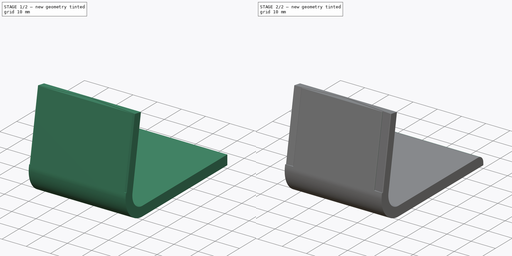
[diagram: build sequence overview — one tinted view per stage of 2, left to right]
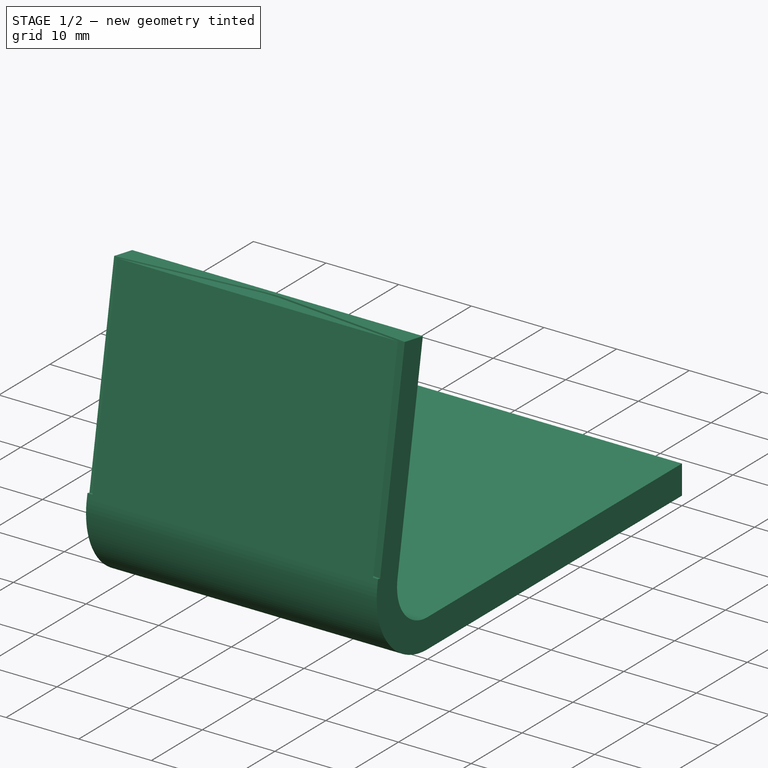
[diagram: stage 1 of 2 — iso view after this stage's code; geometry added in this stage tinted green]
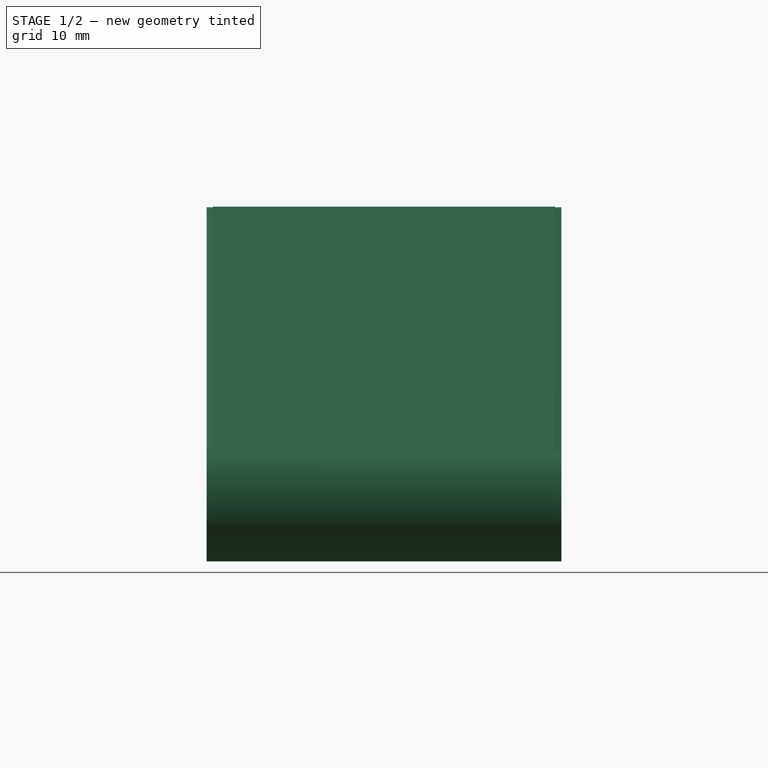
[diagram: stage 1 of 2 — front view after this stage's code; geometry added in this stage tinted green]
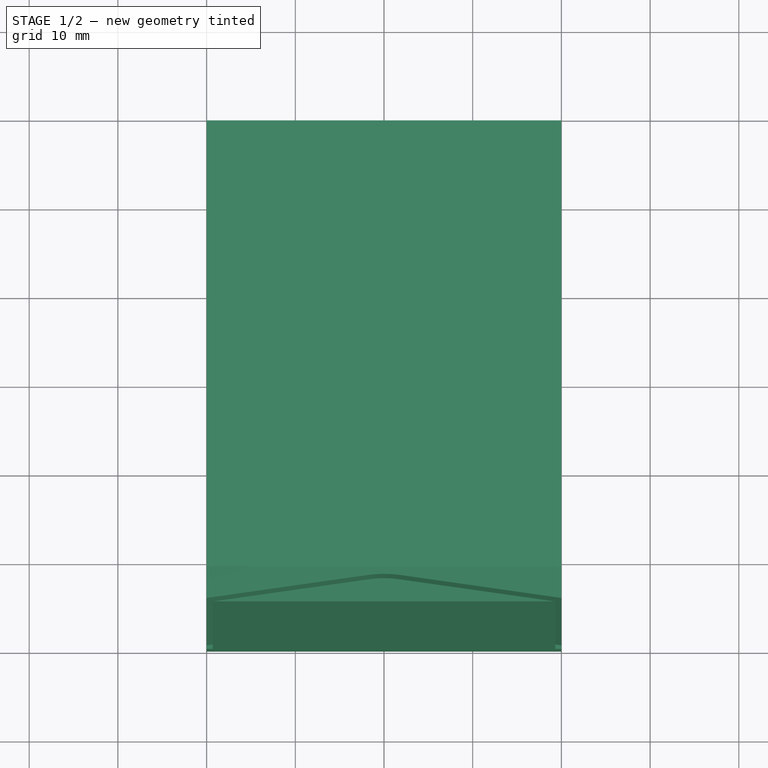
[diagram: stage 1 of 2 — top view after this stage's code; geometry added in this stage tinted green]
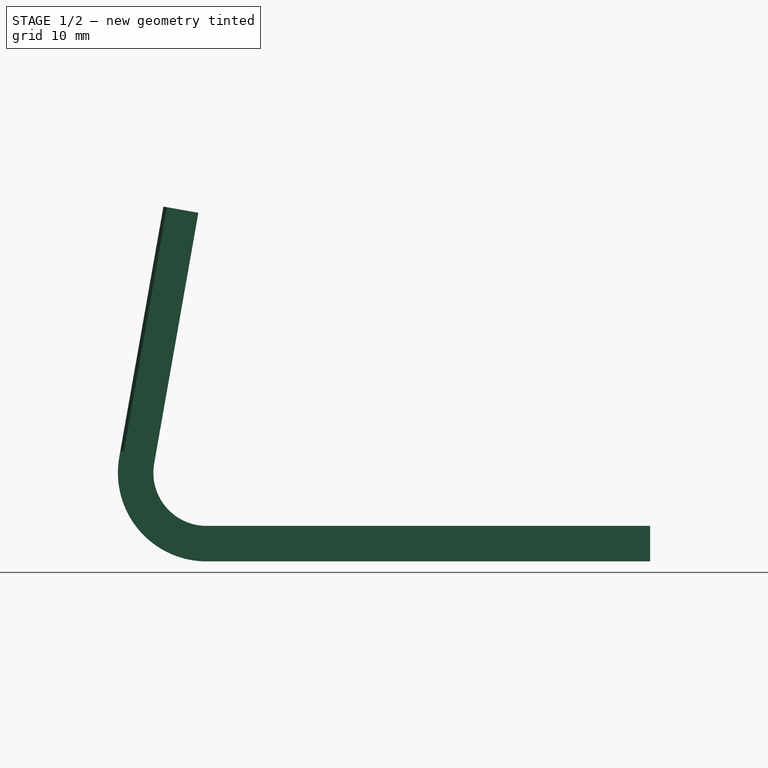
[diagram: stage 1 of 2 — right view after this stage's code; geometry added in this stage tinted green]
FCSTD DOCUMENT  (FreeCAD 0.17R13541 (Git))
Label: test121_noteholder
License: All rights reserved
LicenseURL: http://en.wikipedia.org/wiki/All_rights_reserved
objects: Sketcher::SketchObject×3, PartDesign::Fillet×2, PartDesign::Plane×1, PartDesign::AdditivePipe×1, PartDesign::Pocket×1, PartDesign::Body×1
note: 11 computed .brp shape members not serialized (recipe doc carries the construction recipe); baked Part::Feature solids carry a one-line shape summary decoded from their .brp

FEATURE [Sketcher::SketchObject] Sketch
  MapMode = 5
  Placement = pos=(0,0,0) rot=(0.57735,0.57735,0.57735;2.0944rad)
  Support = -> [YZ_Plane]
  sketch-geometry (7):
    g0: LineSegment [constr] StartX=0 StartY=0 StartZ=0 EndX=60 EndY=0 EndZ=0
    g1: LineSegment [constr] StartX=60 StartY=0 StartZ=0 EndX=60 EndY=40 EndZ=0
    g2: LineSegment [constr] StartX=60 StartY=40 StartZ=0 EndX=0 EndY=40 EndZ=0
    g3: LineSegment [constr] StartX=0 StartY=40 StartZ=0 EndX=0 EndY=0 EndZ=0
    g4: ArcOfCircle CenterX=10 CenterY=10 CenterZ=0 NormalX=0 NormalY=0 NormalZ=1 AngleXU=0 Radius=10 StartAngle=2.96706 EndAngle=4.71239
    g5: LineSegment StartX=0.151917 StartY=11.7365 StartZ=0 EndX=5.13554 EndY=40 EndZ=0
    g6: LineSegment StartX=9.99996 StartY=0 StartZ=0 EndX=60 EndY=0 EndZ=0
  constraints (21):
    c: Coincident(g0,g1)
    c: Coincident(g1,g2)
    c: Coincident(g2,g3)
    c: Coincident(g3,g0)
    c: Horizontal(g0)
    c: Horizontal(g2)
    c: Vertical(g1)
    c: Vertical(g3)
    c: Distance(g2) = 60
    c: Coincident(g0,g-1)
    c: Distance(g1) = 40
    c: Tangent(g4,g3)
    c: Tangent(g4,g0)
    c: Coincident(g5,g4)
    c: PointOnObject(g5,g2)
    c: Coincident(g6,g4)
    c: Coincident(g6,g0)
    c: Horizontal(g6)
    c: Tangent(g5,g4)
    c: Angle(g5,g3) = 0.174533
    c: Radius(g4) = 10
FEATURE [PartDesign::Plane] DatumPlane
  MapMode = 1
  Placement = pos=(0,60,0) rot=(1,0,0;1.5708rad)
  Support = -> [Sketch]
FEATURE [Sketcher::SketchObject] Sketch001
  MapMode = 5
  Placement = pos=(0,60,0) rot=(1,0,0;1.5708rad)
  Support = -> [DatumPlane]
  sketch-geometry (4):
    g0: LineSegment StartX=-40 StartY=0 StartZ=0 EndX=0 EndY=0 EndZ=0
    g1: LineSegment StartX=0 StartY=0 StartZ=0 EndX=0 EndY=4 EndZ=0
    g2: LineSegment StartX=0 StartY=4 StartZ=0 EndX=-40 EndY=4 EndZ=0
    g3: LineSegment StartX=-40 StartY=4 StartZ=0 EndX=-40 EndY=0 EndZ=0
  constraints (11):
    c: Coincident(g0,g1)
    c: Coincident(g1,g2)
    c: Coincident(g2,g3)
    c: Coincident(g3,g0)
    c: Horizontal(g0)
    c: Horizontal(g2)
    c: Vertical(g1)
    c: Vertical(g3)
    c: Coincident(g0,g-1)
    c: Distance(g2) = 40
    c: Distance(g3) = 4
FEATURE [PartDesign::AdditivePipe] AdditivePipe
  AuxilleryCurvelinear = true
  AuxillerySpineTangent = false
  Binormal = (0,0,0)
  Mode = 0
  Placement = pos=(0,60,0) rot=(1,0,0;1.5708rad)
  Profile = -> Sketch001
  Spine = -> Sketch
  SpineTangent = false
  Transformation = 0
  Transition = 0
FEATURE [Sketcher::SketchObject] Sketch002
  ExternalGeometry = -> [AdditivePipe]
  MapMode = 5
  Placement = pos=(0,65.1859,29.4119) rot=(0,0.087152,0.996195;3.14159rad)
  Support = -> [AdditivePipe]
  sketch-geometry (11):
    g0: LineSegment StartX=40 StartY=60.5767 StartZ=0 EndX=21.8489 EndY=57.9427 EndZ=0
    g1: LineSegment StartX=18.1511 StartY=57.9427 StartZ=0 EndX=0 EndY=60.5767 EndZ=0
    g2: LineSegment StartX=0 StartY=60.5767 StartZ=0 EndX=0 EndY=61.0767 EndZ=0
    g3: LineSegment StartX=0 StartY=61.0767 StartZ=0 EndX=18.2263 EndY=58.437 EndZ=0
    g4: LineSegment StartX=21.7737 StartY=58.437 StartZ=0 EndX=40 EndY=61.0767 EndZ=0
    g5: LineSegment StartX=40 StartY=61.0767 StartZ=0 EndX=40 EndY=60.5767 EndZ=0
    g6: ArcOfCircle CenterX=20 CenterY=70.6837 CenterZ=0 NormalX=0 NormalY=0 NormalZ=1 AngleXU=0 Radius=12.8745 StartAngle=4.56828 EndAngle=4.8565
    g7: ArcOfCircle CenterX=20 CenterY=70.6837 CenterZ=0 NormalX=0 NormalY=0 NormalZ=1 AngleXU=0 Radius=12.3745 StartAngle=4.56856 EndAngle=4.85622
    g8: LineSegment [constr] StartX=18.2263 StartY=58.437 StartZ=0 EndX=18.1511 EndY=57.9427 EndZ=0
    g9: LineSegment [constr] StartX=40 StartY=61.0767 StartZ=0 EndX=20 EndY=70.6837 EndZ=0
    g10: LineSegment [constr] StartX=20 StartY=70.6837 StartZ=0 EndX=0 EndY=61.0767 EndZ=0
  constraints (25):
    c: Coincident(g1,g2)
    c: Coincident(g2,g3)
    c: Coincident(g4,g5)
    c: Coincident(g5,g0)
    c: Vertical(g5)
    c: PointOnObject(g1,g-2)
    c: Vertical(g2)
    c: Equal(g2,g5)
    c: PointOnObject(g0,g-3)
    c: Tangent(g0,g6) = 1.5708
    c: Tangent(g1,g6) = 1.5708
    c: Tangent(g4,g7) = -1.5708
    c: Tangent(g3,g7) = -1.5708
    c: Coincident(g6,g7)
    c: Coincident(g8,g3)
    c: Coincident(g8,g1)
    c: Equal(g8,g2)
    c: DistanceY(g2,g4) = 0
    c: Coincident(g9,g4)
    c: Coincident(g9,g6)
    c: Coincident(g10,g6)
    c: Coincident(g10,g2)
    c: Equal(g10,g9)
    c: Distance(g2) = 0.5
    c: DistanceY(g-4,g2) = 0.1
FEATURE [PartDesign::Pocket] Pocket
  BaseFeature = -> AdditivePipe
  Length = 28
  Length2 = 100
  Placement = pos=(0,60,0) rot=(1,0,0;1.5708rad)
  Profile = -> Sketch002
  Type = 0
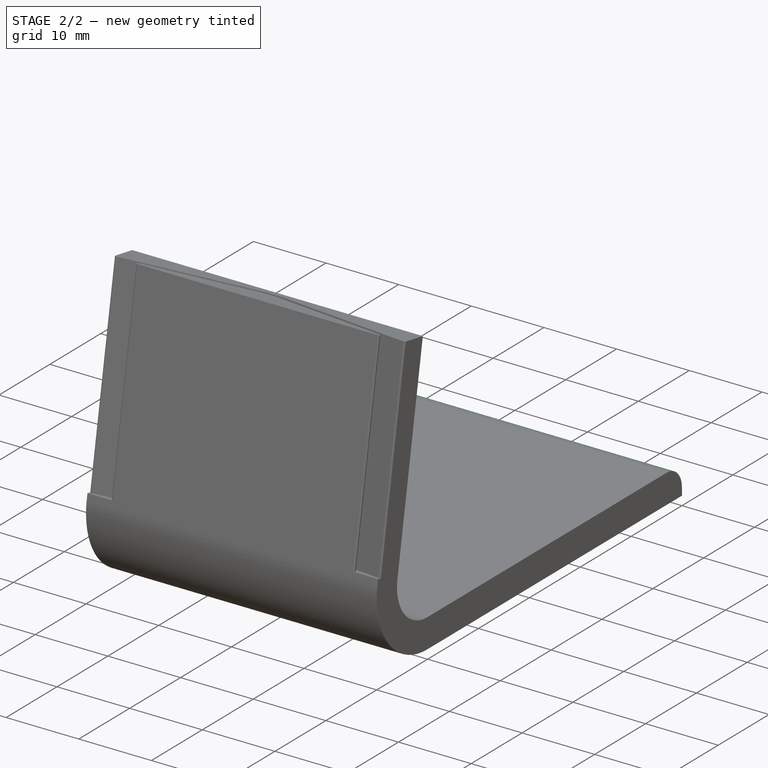
[diagram: stage 2 of 2 — iso view after this stage's code; geometry added in this stage tinted green]
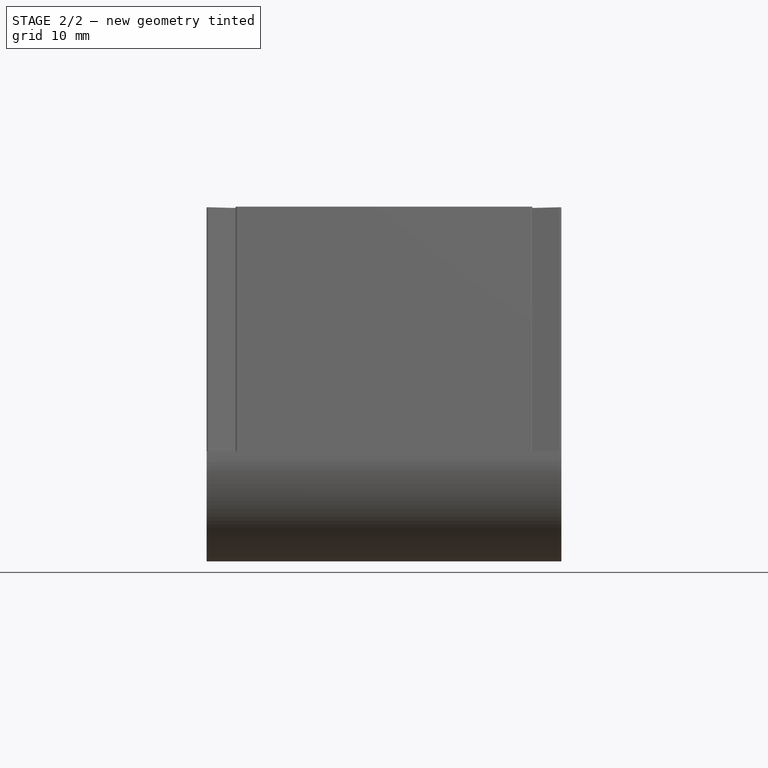
[diagram: stage 2 of 2 — front view after this stage's code; geometry added in this stage tinted green]
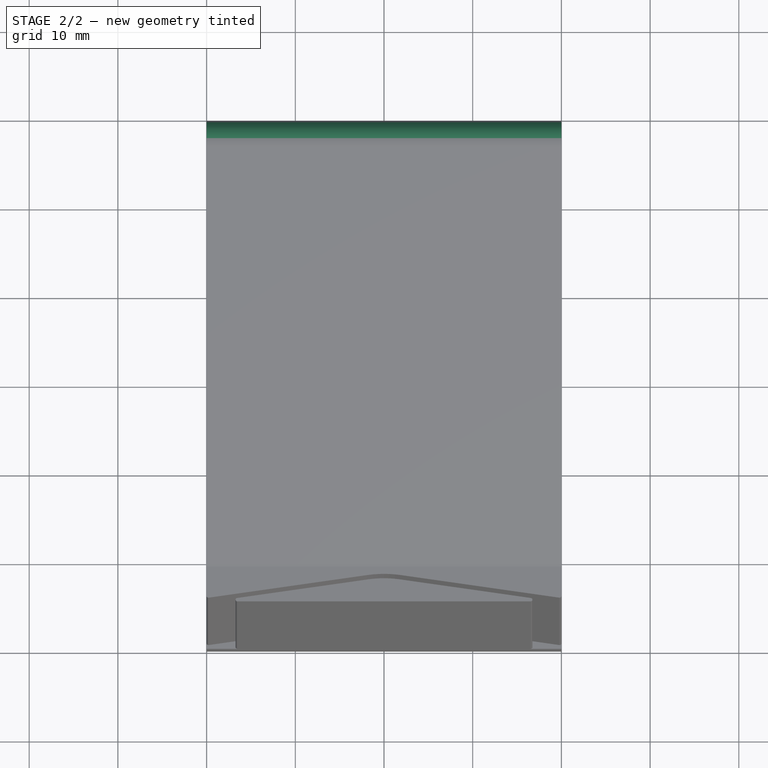
[diagram: stage 2 of 2 — top view after this stage's code; geometry added in this stage tinted green]
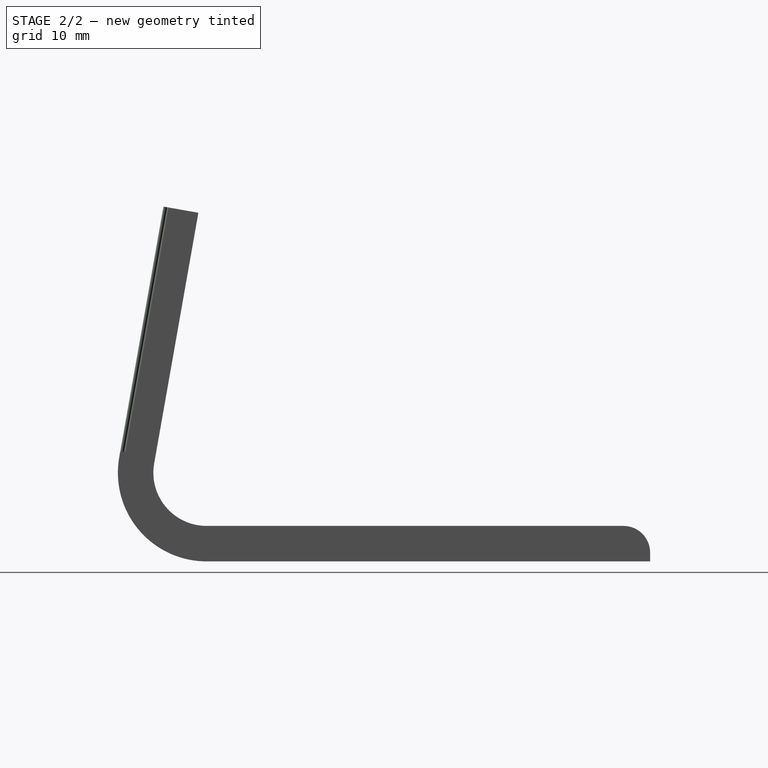
[diagram: stage 2 of 2 — right view after this stage's code; geometry added in this stage tinted green]
FEATURE [PartDesign::Fillet] Fillet
  Base = -> Pocket [Edge30,Edge28,Edge16,Edge11]
  BaseFeature = -> Pocket
  Placement = pos=(0,60,0) rot=(1,0,0;1.5708rad)
  Radius = 0.2
FEATURE [PartDesign::Fillet] Fillet001
  Base = -> Fillet [Edge65]
  BaseFeature = -> Fillet
  Placement = pos=(0,60,0) rot=(1,0,0;1.5708rad)
  Radius = 3
FEATURE [PartDesign::Body] Body
  Group = -> [Sketch,Sketch001,DatumPlane,AdditivePipe,Sketch002,Pocket,Fillet,Fillet001]
  Origin = -> Origin
  Tip = -> Fillet001
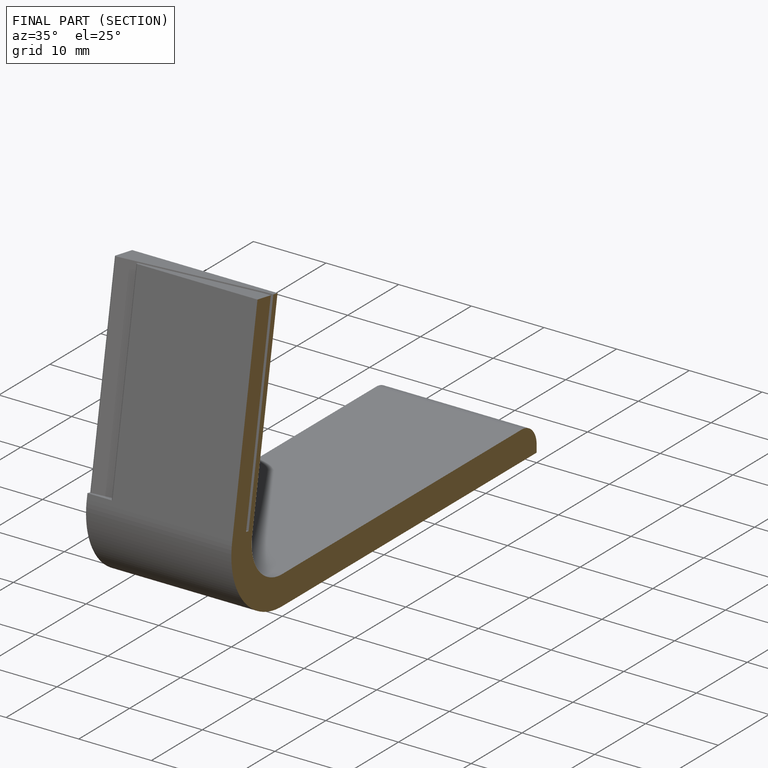
[diagram: finished part — half-section view (interior)]
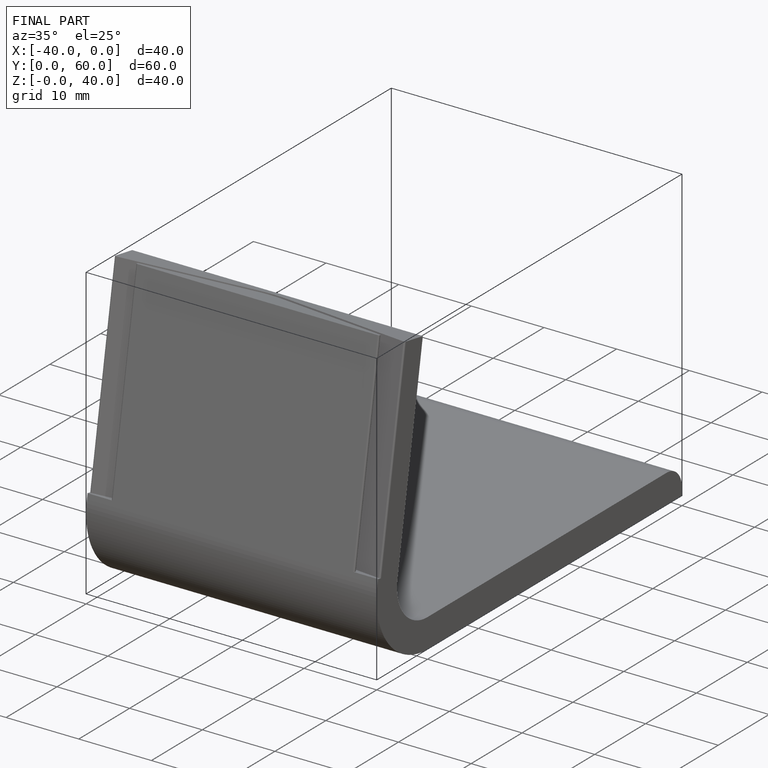
[diagram: finished part — iso view with bounding-box wireframe]
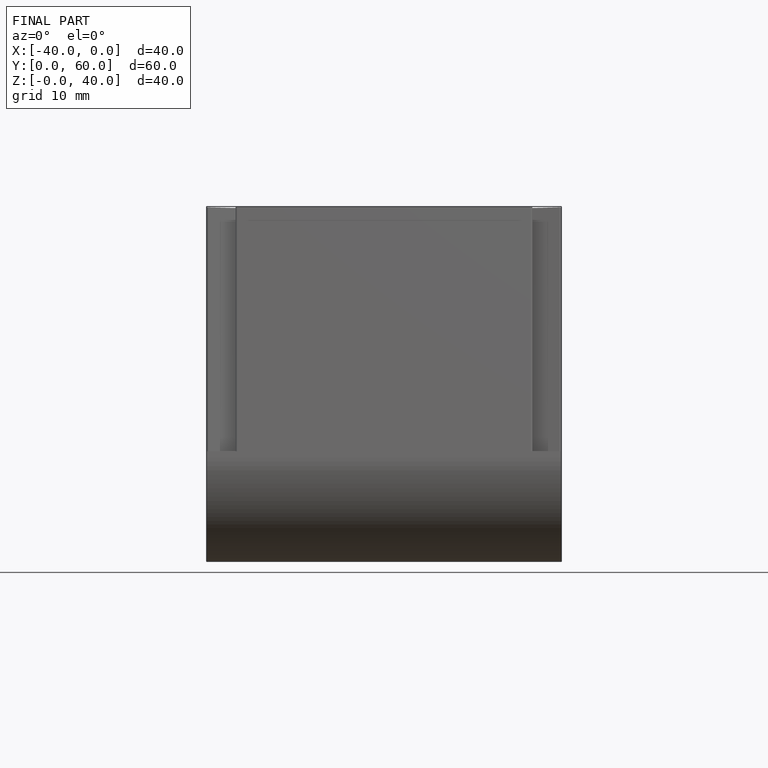
[diagram: finished part — front view with bounding-box wireframe]
